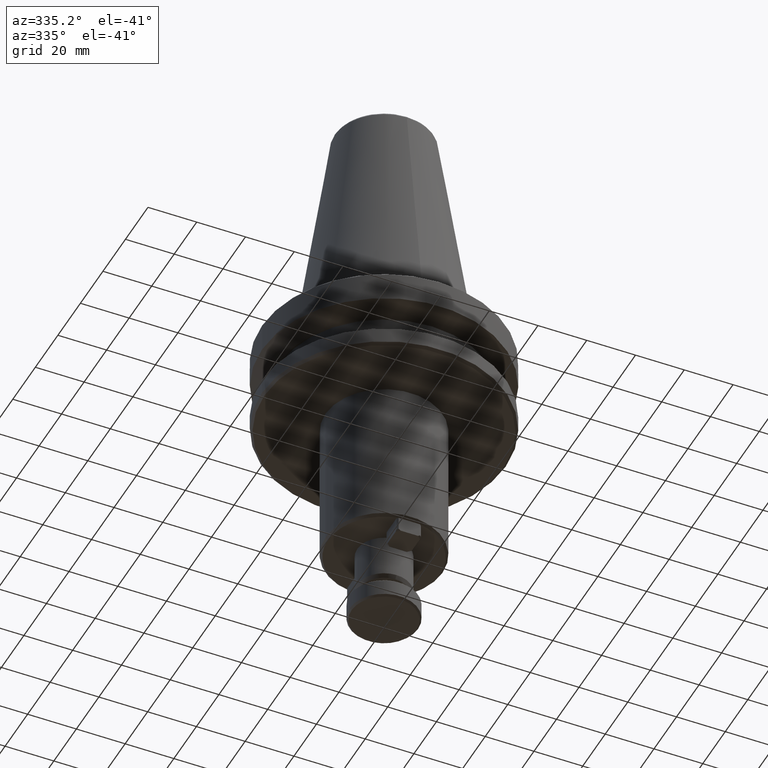
[diagram: clean part render]
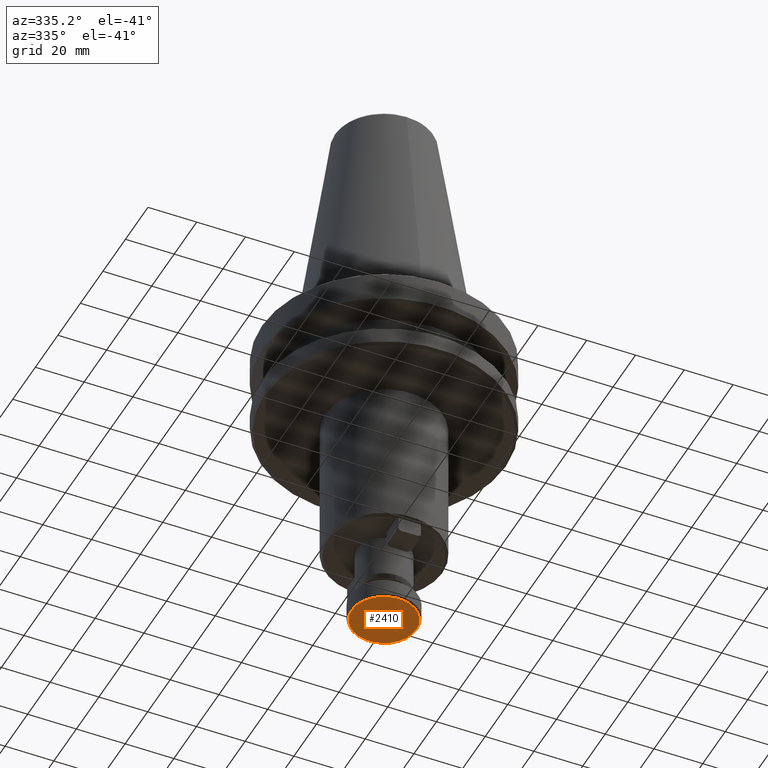
[diagram: same view with one face highlighted and labeled with its STEP entity id]
A machine part, auxiliary view. The second image highlights one B-rep face of the part: STEP entity #2410.
In plain terms, the highlighted planar face has unit normal (0, 0, 1).
Its self-contained STEP definition (entity closure, byte-faithful):
#191 = EDGE_LOOP ( 'NONE', ( #1109, #2727 ) ) ;
#234 = AXIS2_PLACEMENT_3D ( 'NONE', #1366, #1361, #1359 ) ;
#239 = AXIS2_PLACEMENT_3D ( 'NONE', #1048, #1026, #1022 ) ;
#1022 = DIRECTION ( 'NONE',  ( 1.000000000000000000, 0.0000000000000000000, -0.0000000000000000000 ) ) ;
#1026 = DIRECTION ( 'NONE',  ( 0.0000000000000000000, 0.0000000000000000000, 1.000000000000000000 ) ) ;
#1048 = CARTESIAN_POINT ( 'NONE',  ( 0.0000000000000000000, 13.30000000000000100, -131.0000000000000300 ) ) ;
#1064 = EDGE_CURVE ( 'NONE', #2023, #2007, #2665, .T. ) ;
#1071 = DIRECTION ( 'NONE',  ( 1.000000000000000000, 0.0000000000000000000, 0.0000000000000000000 ) ) ;
#1073 = DIRECTION ( 'NONE',  ( 0.0000000000000000000, -0.0000000000000000000, 1.000000000000000000 ) ) ;
#1076 = CARTESIAN_POINT ( 'NONE',  ( 0.0000000000000000000, 0.0000000000000000000, -131.0000000000000300 ) ) ;
#1109 = ORIENTED_EDGE ( 'NONE', *, *, #1064, .F. ) ;
#1139 = PLANE ( 'NONE',  #239 ) ;
#1289 = EDGE_CURVE ( 'NONE', #2007, #2023, #2692, .T. ) ;
#1359 = DIRECTION ( 'NONE',  ( 1.000000000000000000, 0.0000000000000000000, 0.0000000000000000000 ) ) ;
#1361 = DIRECTION ( 'NONE',  ( 0.0000000000000000000, -0.0000000000000000000, 1.000000000000000000 ) ) ;
#1366 = CARTESIAN_POINT ( 'NONE',  ( 0.0000000000000000000, 0.0000000000000000000, -131.0000000000000300 ) ) ;
#1765 = FACE_OUTER_BOUND ( 'NONE', #191, .T. ) ;
#2007 = VERTEX_POINT ( 'NONE', #2081 ) ;
#2023 = VERTEX_POINT ( 'NONE', #2045 ) ;
#2045 = CARTESIAN_POINT ( 'NONE',  ( 13.30000000000000100, 0.0000000000000000000, -131.0000000000000300 ) ) ;
#2081 = CARTESIAN_POINT ( 'NONE',  ( -13.30000000000000100, 1.671642880836135300E-015, -131.0000000000000300 ) ) ;
#2410 = ADVANCED_FACE ( 'NONE', ( #1765 ), #1139, .F. ) ;
#2540 = AXIS2_PLACEMENT_3D ( 'NONE', #1076, #1073, #1071 ) ;
#2665 = CIRCLE ( 'NONE', #234, 13.30000000000000100 ) ;
#2692 = CIRCLE ( 'NONE', #2540, 13.30000000000000100 ) ;
#2727 = ORIENTED_EDGE ( 'NONE', *, *, #1289, .F. ) ;